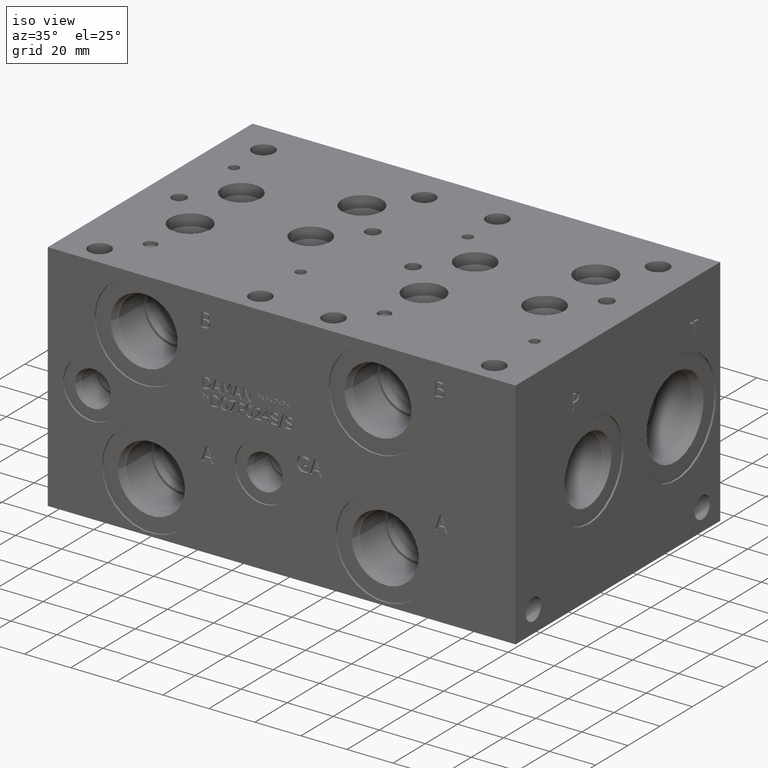
[diagram: clean part render]
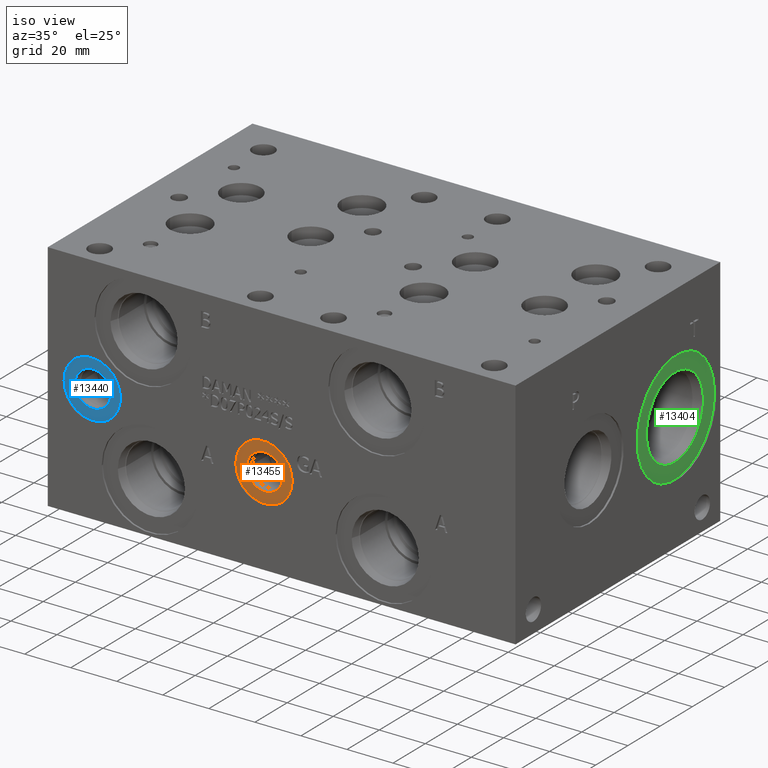
[diagram: same view with three faces highlighted in distinct colors, each labeled with its STEP entity id]
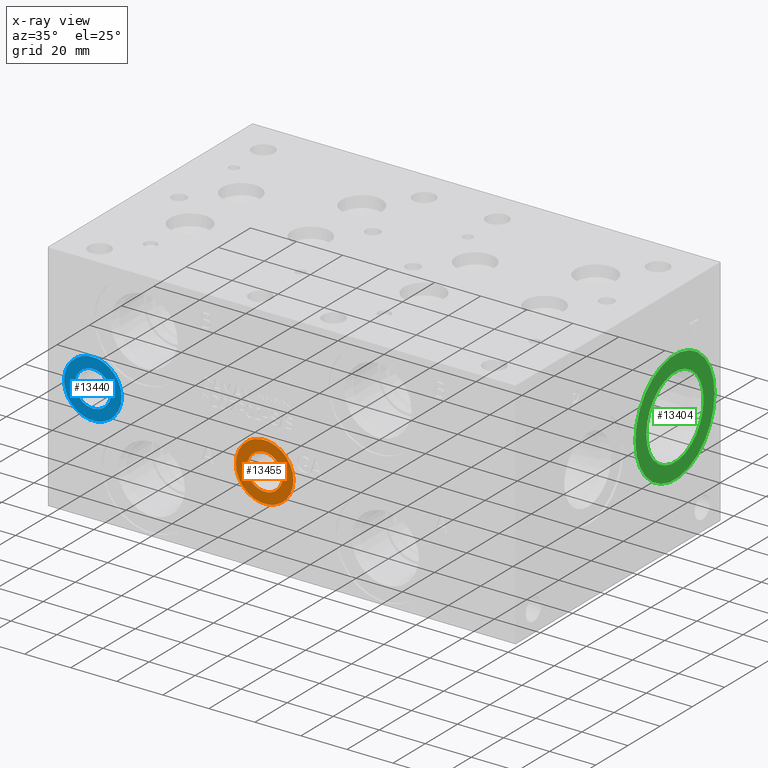
[diagram: x-ray of the same camera — body ghosted, the three highlighted faces saturated]
A machine part, iso view with three faces highlighted in distinct colors.
The next image is the same camera in x-ray (body ghosted, the three faces saturated) — at least one of them is partly hidden behind the body in this view.
Their STEP definitions:

[orange] entity #13455 — the highlighted planar face has unit normal (0, 1, 0).
#363=CIRCLE('',#14196,12.5095);
#364=CIRCLE('',#14197,12.5095);
#365=CIRCLE('',#14199,7.79780000000001);
#366=CIRCLE('',#14200,7.79780000000001);
#658=FACE_BOUND('',#2444,.T.);
#1057=PLANE('',#14198);
#1659=FACE_OUTER_BOUND('',#2443,.T.);
#2443=EDGE_LOOP('',(#11585,#11586));
#2444=EDGE_LOOP('',(#11587,#11588));
#6373=VERTEX_POINT('',#22760);
#6374=VERTEX_POINT('',#22762);
#6375=VERTEX_POINT('',#22766);
#6376=VERTEX_POINT('',#22767);
#8180=EDGE_CURVE('',#6373,#6374,#363,.T.);
#8181=EDGE_CURVE('',#6374,#6373,#364,.T.);
#8182=EDGE_CURVE('',#6375,#6376,#365,.T.);
#8183=EDGE_CURVE('',#6376,#6375,#366,.T.);
#11585=ORIENTED_EDGE('',*,*,#8181,.F.);
#11586=ORIENTED_EDGE('',*,*,#8180,.F.);
#11587=ORIENTED_EDGE('',*,*,#8182,.T.);
#11588=ORIENTED_EDGE('',*,*,#8183,.T.);
#13455=ADVANCED_FACE('',(#1659,#658),#1057,.F.);
#14196=AXIS2_PLACEMENT_3D('',#22763,#16830,#16831);
#14197=AXIS2_PLACEMENT_3D('',#22764,#16832,#16833);
#14198=AXIS2_PLACEMENT_3D('',#22765,#16834,#16835);
#14199=AXIS2_PLACEMENT_3D('',#22768,#16836,#16837);
#14200=AXIS2_PLACEMENT_3D('',#22769,#16838,#16839);
#16830=DIRECTION('center_axis',(0.,1.,0.));
#16831=DIRECTION('ref_axis',(1.,0.,0.));
#16832=DIRECTION('center_axis',(0.,1.,0.));
#16833=DIRECTION('ref_axis',(1.,0.,0.));
#16834=DIRECTION('center_axis',(0.,1.,0.));
#16835=DIRECTION('ref_axis',(0.,0.,1.));
#16836=DIRECTION('center_axis',(0.,1.,0.));
#16837=DIRECTION('ref_axis',(1.,0.,0.));
#16838=DIRECTION('center_axis',(0.,1.,0.));
#16839=DIRECTION('ref_axis',(1.,0.,0.));
#22760=CARTESIAN_POINT('',(81.1657,0.7874,38.1));
#22762=CARTESIAN_POINT('',(106.1847,0.7874,38.1));
#22763=CARTESIAN_POINT('Origin',(93.6752,0.7874,38.1));
#22764=CARTESIAN_POINT('Origin',(93.6752,0.7874,38.1));
#22765=CARTESIAN_POINT('Origin',(101.473,0.7874,38.1));
#22766=CARTESIAN_POINT('',(101.473,0.7874,38.1));
#22767=CARTESIAN_POINT('',(85.8774,0.787400000000002,38.1));
#22768=CARTESIAN_POINT('Origin',(93.6752,0.7874,38.1));
#22769=CARTESIAN_POINT('Origin',(93.6752,0.7874,38.1));

[blue] entity #13440 — the highlighted planar face has unit normal (0, 1, 0).
#340=CIRCLE('',#14158,12.5095);
#341=CIRCLE('',#14159,12.5095);
#342=CIRCLE('',#14161,7.7978);
#343=CIRCLE('',#14162,7.7978);
#655=FACE_BOUND('',#2426,.T.);
#1054=PLANE('',#14160);
#1644=FACE_OUTER_BOUND('',#2425,.T.);
#2425=EDGE_LOOP('',(#11513,#11514));
#2426=EDGE_LOOP('',(#11515,#11516));
#6349=VERTEX_POINT('',#22686);
#6350=VERTEX_POINT('',#22688);
#6351=VERTEX_POINT('',#22692);
#6352=VERTEX_POINT('',#22693);
#8145=EDGE_CURVE('',#6349,#6350,#340,.T.);
#8146=EDGE_CURVE('',#6350,#6349,#341,.T.);
#8147=EDGE_CURVE('',#6351,#6352,#342,.T.);
#8148=EDGE_CURVE('',#6352,#6351,#343,.T.);
#11513=ORIENTED_EDGE('',*,*,#8146,.F.);
#11514=ORIENTED_EDGE('',*,*,#8145,.F.);
#11515=ORIENTED_EDGE('',*,*,#8147,.T.);
#11516=ORIENTED_EDGE('',*,*,#8148,.T.);
#13440=ADVANCED_FACE('',(#1644,#655),#1054,.F.);
#14158=AXIS2_PLACEMENT_3D('',#22689,#16742,#16743);
#14159=AXIS2_PLACEMENT_3D('',#22690,#16744,#16745);
#14160=AXIS2_PLACEMENT_3D('',#22691,#16746,#16747);
#14161=AXIS2_PLACEMENT_3D('',#22694,#16748,#16749);
#14162=AXIS2_PLACEMENT_3D('',#22695,#16750,#16751);
#16742=DIRECTION('center_axis',(0.,1.,0.));
#16743=DIRECTION('ref_axis',(1.,0.,0.));
#16744=DIRECTION('center_axis',(0.,1.,0.));
#16745=DIRECTION('ref_axis',(1.,0.,0.));
#16746=DIRECTION('center_axis',(0.,1.,0.));
#16747=DIRECTION('ref_axis',(0.,0.,1.));
#16748=DIRECTION('center_axis',(0.,1.,0.));
#16749=DIRECTION('ref_axis',(1.,0.,0.));
#16750=DIRECTION('center_axis',(0.,1.,0.));
#16751=DIRECTION('ref_axis',(1.,0.,0.));
#22686=CARTESIAN_POINT('',(6.5405,0.7874,50.8));
#22688=CARTESIAN_POINT('',(31.5595,0.7874,50.8));
#22689=CARTESIAN_POINT('Origin',(19.05,0.7874,50.8));
#22690=CARTESIAN_POINT('Origin',(19.05,0.7874,50.8));
#22691=CARTESIAN_POINT('Origin',(26.8478,0.7874,50.8));
#22692=CARTESIAN_POINT('',(26.8478,0.7874,50.8));
#22693=CARTESIAN_POINT('',(11.2522,0.7874,50.8));
#22694=CARTESIAN_POINT('Origin',(19.05,0.7874,50.8));
#22695=CARTESIAN_POINT('Origin',(19.05,0.7874,50.8));

[green] entity #13404 — the highlighted planar face has unit normal (1, 0, 0).
#288=CIRCLE('',#14071,24.5618);
#289=CIRCLE('',#14072,24.5618);
#290=CIRCLE('',#14073,17.7546);
#648=FACE_BOUND('',#2383,.T.);
#1047=PLANE('',#14070);
#1608=FACE_OUTER_BOUND('',#2382,.T.);
#2382=EDGE_LOOP('',(#11336,#11337));
#2383=EDGE_LOOP('',(#11338));
#6292=VERTEX_POINT('',#22514);
#6293=VERTEX_POINT('',#22515);
#6294=VERTEX_POINT('',#22518);
#8064=EDGE_CURVE('',#6292,#6293,#288,.T.);
#8065=EDGE_CURVE('',#6293,#6292,#289,.T.);
#8066=EDGE_CURVE('',#6294,#6294,#290,.T.);
#11336=ORIENTED_EDGE('',*,*,#8064,.T.);
#11337=ORIENTED_EDGE('',*,*,#8065,.T.);
#11338=ORIENTED_EDGE('',*,*,#8066,.F.);
#13404=ADVANCED_FACE('',(#1608,#648),#1047,.T.);
#14070=AXIS2_PLACEMENT_3D('',#22513,#16537,#16538);
#14071=AXIS2_PLACEMENT_3D('',#22516,#16539,#16540);
#14072=AXIS2_PLACEMENT_3D('',#22517,#16541,#16542);
#14073=AXIS2_PLACEMENT_3D('',#22519,#16543,#16544);
#16537=DIRECTION('center_axis',(1.,0.,0.));
#16538=DIRECTION('ref_axis',(0.,1.,0.));
#16539=DIRECTION('center_axis',(1.,0.,0.));
#16540=DIRECTION('ref_axis',(0.,1.,0.));
#16541=DIRECTION('center_axis',(1.,0.,0.));
#16542=DIRECTION('ref_axis',(0.,1.,0.));
#16543=DIRECTION('center_axis',(1.,0.,0.));
#16544=DIRECTION('ref_axis',(0.,1.,0.));
#22513=CARTESIAN_POINT('Origin',(202.4126,100.0252,50.8));
#22514=CARTESIAN_POINT('',(202.4126,124.587,50.8));
#22515=CARTESIAN_POINT('',(202.4126,75.4634,50.8));
#22516=CARTESIAN_POINT('Origin',(202.4126,100.0252,50.8));
#22517=CARTESIAN_POINT('Origin',(202.4126,100.0252,50.8));
#22518=CARTESIAN_POINT('',(202.4126,82.2706,50.8));
#22519=CARTESIAN_POINT('Origin',(202.4126,100.0252,50.8));